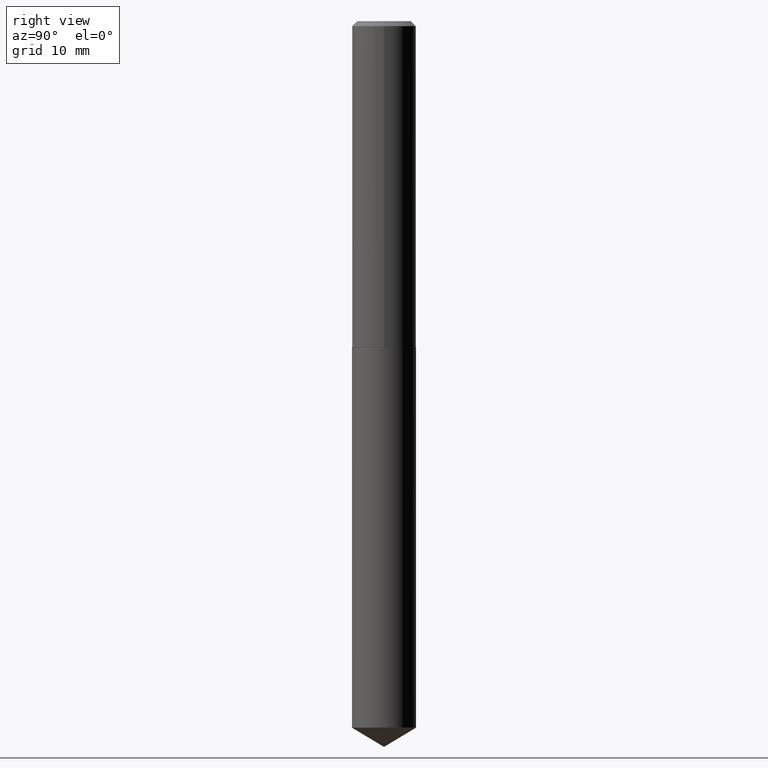
[diagram: clean part render]
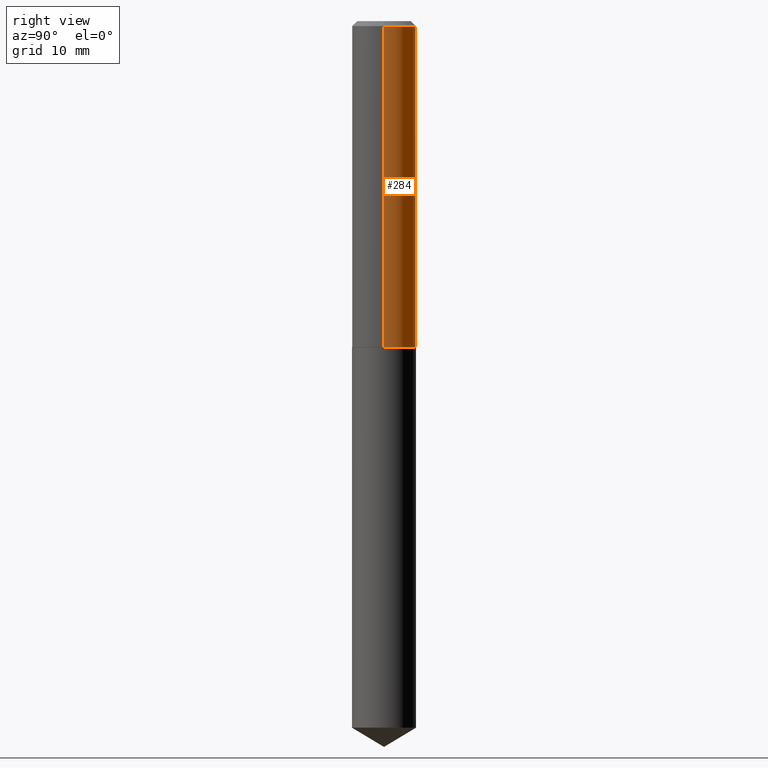
[diagram: same view with one face highlighted and labeled with its STEP entity id]
A machine part, right view. The second image highlights one B-rep face of the part: STEP entity #284.
In plain terms, the highlighted cylindrical surface (edge-blend (fillet) strip) has radius 5.0419 mm, axis along (-0, 0, 1).
Its self-contained STEP definition (entity closure, byte-faithful):
#6 = VERTEX_POINT ( 'NONE', #364 ) ;
#11 = EDGE_CURVE ( 'NONE', #6, #304, #38, .T. ) ;
#18 = DIRECTION ( 'NONE',  ( -2.445468806185136597E-29, 3.491481338843145583E-15, 1.000000000000000000 ) ) ;
#25 = ORIENTED_EDGE ( 'NONE', *, *, #220, .F. ) ;
#38 = LINE ( 'NONE', #118, #150 ) ;
#46 = CARTESIAN_POINT ( 'NONE',  ( 0.1985000000000002873, -8.444147617992146450E-15, -2.021500000000000519 ) ) ;
#48 = CARTESIAN_POINT ( 'NONE',  ( 0.000000000000000000, 0.000000000000000000, 0.000000000000000000 ) ) ;
#58 = ORIENTED_EDGE ( 'NONE', *, *, #108, .T. ) ;
#75 = FACE_OUTER_BOUND ( 'NONE', #326, .T. ) ;
#108 = EDGE_CURVE ( 'NONE', #202, #6, #345, .T. ) ;
#118 = CARTESIAN_POINT ( 'NONE',  ( -0.1985000000000001485, 1.410427330483799924E-15, -9.764086154155995580E-30 ) ) ;
#137 = AXIS2_PLACEMENT_3D ( 'NONE', #212, #373, #154 ) ;
#148 = DIRECTION ( 'NONE',  ( -2.445468806185136877E-29, 3.491481338843145188E-15, 1.000000000000000000 ) ) ;
#150 = VECTOR ( 'NONE', #201, 39.37007874015748143 ) ;
#154 = DIRECTION ( 'NONE',  ( 1.000000000000000000, -6.982962677686266711E-15, 0.000000000000000000 ) ) ;
#172 = VECTOR ( 'NONE', #148, 39.37007874015748143 ) ;
#177 = VERTEX_POINT ( 'NONE', #343 ) ;
#193 = CYLINDRICAL_SURFACE ( 'NONE', #211, 0.1985000000000001485 ) ;
#201 = DIRECTION ( 'NONE',  ( -2.445468806185136877E-29, 3.491481338843145188E-15, 1.000000000000000000 ) ) ;
#202 = VERTEX_POINT ( 'NONE', #46 ) ;
#209 = ORIENTED_EDGE ( 'NONE', *, *, #303, .F. ) ;
#210 = LINE ( 'NONE', #308, #172 ) ;
#211 = AXIS2_PLACEMENT_3D ( 'NONE', #48, #18, #354 ) ;
#212 = CARTESIAN_POINT ( 'NONE',  ( 4.943515191703255249E-29, -7.058029526471420552E-15, -2.021500000000000519 ) ) ;
#220 = EDGE_CURVE ( 'NONE', #202, #177, #210, .T. ) ;
#221 = DIRECTION ( 'NONE',  ( -2.445468806185136597E-29, 3.491481338843145583E-15, 1.000000000000000000 ) ) ;
#226 = CARTESIAN_POINT ( 'NONE',  ( -0.1985000000000000098, -2.173141828671334310E-15, -0.03125000000000020123 ) ) ;
#231 = ORIENTED_EDGE ( 'NONE', *, *, #11, .T. ) ;
#242 = AXIS2_PLACEMENT_3D ( 'NONE', #317, #221, #289 ) ;
#284 = ADVANCED_FACE ( 'NONE', ( #75 ), #193, .T. ) ;
#289 = DIRECTION ( 'NONE',  ( 1.000000000000000000, -6.982962677686265922E-15, 0.000000000000000000 ) ) ;
#303 = EDGE_CURVE ( 'NONE', #177, #304, #311, .T. ) ;
#304 = VERTEX_POINT ( 'NONE', #226 ) ;
#308 = CARTESIAN_POINT ( 'NONE',  ( 0.1985000000000001485, -1.386118091520724912E-15, 9.679210899954938883E-30 ) ) ;
#311 = CIRCLE ( 'NONE', #242, 0.1985000000000000098 ) ;
#317 = CARTESIAN_POINT ( 'NONE',  ( 7.642090019328601786E-31, -1.091087918388490144E-16, -0.03125000000000020123 ) ) ;
#326 = EDGE_LOOP ( 'NONE', ( #58, #231, #209, #25 ) ) ;
#343 = CARTESIAN_POINT ( 'NONE',  ( 0.1985000000000000098, -1.495226883359573027E-15, -0.03125000000000020123 ) ) ;
#345 = CIRCLE ( 'NONE', #137, 0.1985000000000002873 ) ;
#354 = DIRECTION ( 'NONE',  ( 1.000000000000000000, -6.982962677686266711E-15, 4.876176775795935232E-29 ) ) ;
#364 = CARTESIAN_POINT ( 'NONE',  ( -0.1985000000000002873, -5.647602195987619247E-15, -2.021500000000000519 ) ) ;
#373 = DIRECTION ( 'NONE',  ( -2.445468806185136597E-29, 3.491481338843145583E-15, 1.000000000000000000 ) ) ;